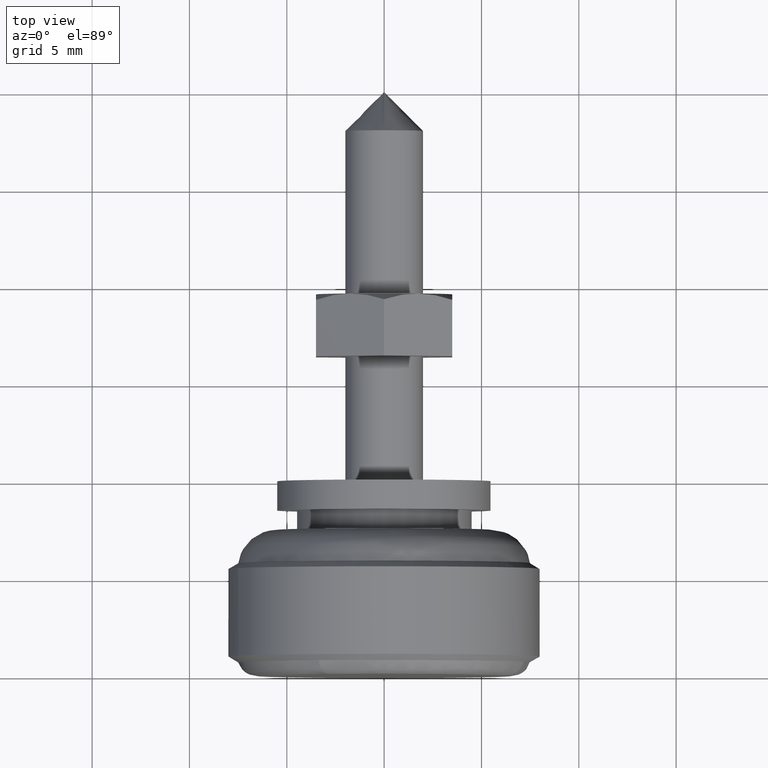
[diagram: clean part render]
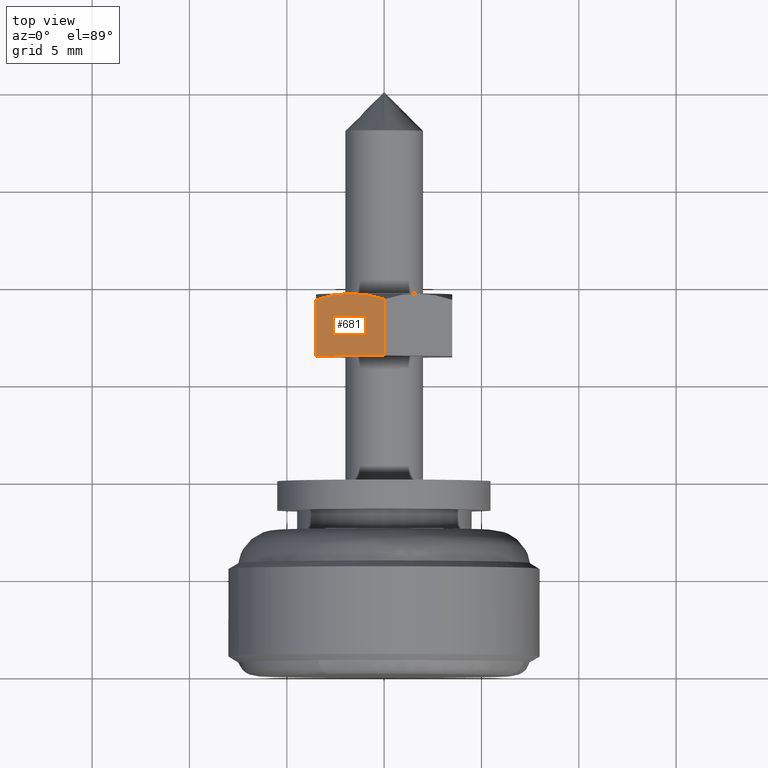
[diagram: same view with one face highlighted and labeled with its STEP entity id]
A machine part, top view. The second image highlights one B-rep face of the part: STEP entity #681.
In plain terms, the highlighted face is a freeform B-spline surface patch.
Its self-contained STEP definition (entity closure, byte-faithful):
#402=CARTESIAN_POINT('',(9.287777574894541,3.500000000000165,2.020699999999960));
#403=VERTEX_POINT('',#402);
#417=CARTESIAN_POINT('',(9.599800000000000,1.763267630760730,3.023390028149115));
#418=VERTEX_POINT('',#417);
#419=CARTESIAN_POINT('',(9.287777574894541,3.500000000000165,2.020699999999960));
#420=CARTESIAN_POINT('',(9.311531720283725,3.428606820163918,2.061918342427126));
#421=CARTESIAN_POINT('',(9.334304428699731,3.356890165724180,2.103323440606092));
#422=CARTESIAN_POINT('',(9.377641077201481,3.212728862608312,2.186553939236441));
#423=CARTESIAN_POINT('',(9.398219891941841,3.140215435351167,2.228419048510300));
#424=CARTESIAN_POINT('',(9.455936749683646,2.922666004987612,2.354019658206192));
#425=CARTESIAN_POINT('',(9.489155578477980,2.777294217634538,2.437949021264578));
#426=CARTESIAN_POINT('',(9.569721827733401,2.343758551217000,2.688247741587405));
#427=CARTESIAN_POINT('',(9.598937444526282,2.054426469392420,2.855291552371095));
#428=CARTESIAN_POINT('',(9.599800000000000,1.763267630760730,3.023390028149115));
#429=B_SPLINE_CURVE_WITH_KNOTS('',3,(#419,#420,#421,#422,#423,#424,#425,#426,#427,#428),.UNSPECIFIED.,.F.,.U.,(4,2,2,2,4),(0.0,0.062500000000000,0.124999999999999,0.249999999999999,0.496771747271935),.UNSPECIFIED.);
#430=EDGE_CURVE('',#403,#418,#429,.T.);
#462=CARTESIAN_POINT('',(9.287800000000001,-5.257714E-016,4.041399999999999));
#463=VERTEX_POINT('',#462);
#479=CARTESIAN_POINT('',(9.599800000000000,1.736664969520875,3.038748884596935));
#480=VERTEX_POINT('',#479);
#494=CARTESIAN_POINT('',(9.599800000000000,1.736664969520875,3.038748884596935));
#495=CARTESIAN_POINT('',(9.599381548510628,1.594183902221551,3.121009311080283));
#496=CARTESIAN_POINT('',(9.592248547774934,1.451270219046963,3.203519505249107));
#497=CARTESIAN_POINT('',(9.571357098975414,1.233714089974394,3.329123982396800));
#498=CARTESIAN_POINT('',(9.562433368831906,1.159212092699103,3.372137178366566));
#499=CARTESIAN_POINT('',(9.541291348238362,1.010929575202129,3.457747030682601));
#500=CARTESIAN_POINT('',(9.529092441953495,0.937205686828811,3.500310991035733));
#501=CARTESIAN_POINT('',(9.460622697065402,0.570502787954303,3.712024290394505));
#502=CARTESIAN_POINT('',(9.382039188326685,0.283244442393351,3.877870844358790));
#503=CARTESIAN_POINT('',(9.287800000000020,-6.075018E-015,4.041400000000003));
#504=B_SPLINE_CURVE_WITH_KNOTS('',3,(#494,#495,#496,#497,#498,#499,#500,#501,#502,#503),.UNSPECIFIED.,.F.,.U.,(4,2,2,2,4),(0.504286012712478,0.625000000000000,0.687500000000000,0.750000000000000,1.0),.UNSPECIFIED.);
#505=EDGE_CURVE('',#480,#463,#504,.T.);
#517=CARTESIAN_POINT('',(6.400000000000000,0.0,4.041399999999999));
#518=VERTEX_POINT('',#517);
#524=CARTESIAN_POINT('',(6.400000000000000,3.500000000000085,2.020700000000000));
#525=VERTEX_POINT('',#524);
#526=CARTESIAN_POINT('',(6.400000000000000,0.0,4.041399999999999));
#527=CARTESIAN_POINT('',(6.400000000000000,3.500000000000085,2.020700000000000));
#528=QUASI_UNIFORM_CURVE('',1,(#526,#527),.UNSPECIFIED.,.F.,.U.);
#529=EDGE_CURVE('',#518,#525,#528,.T.);
#579=CARTESIAN_POINT('',(9.599800000000000,1.736664969520875,3.038748884596935));
#580=CARTESIAN_POINT('',(9.599800000000000,1.763267630760730,3.023390028149115));
#581=QUASI_UNIFORM_CURVE('',1,(#579,#580),.UNSPECIFIED.,.F.,.U.);
#582=EDGE_CURVE('',#480,#418,#581,.T.);
#655=CARTESIAN_POINT('',(9.287777574894541,3.500000000000165,2.020699999999960));
#656=CARTESIAN_POINT('',(6.400000000000000,3.500000000000085,2.020700000000000));
#657=QUASI_UNIFORM_CURVE('',1,(#655,#656),.UNSPECIFIED.,.F.,.U.);
#658=EDGE_CURVE('',#403,#525,#657,.T.);
#664=CARTESIAN_POINT('',(6.240170086314131,3.674825026071987,1.919766019947576));
#665=CARTESIAN_POINT('',(6.240170086314131,-0.174825088656702,4.142334016185311));
#666=CARTESIAN_POINT('',(9.759630085336518,3.674825026071987,1.919766019947576));
#667=CARTESIAN_POINT('',(9.759630085336518,-0.174825088656702,4.142334016185311));
#668=B_SPLINE_SURFACE_WITH_KNOTS('',1,1,((#664,#666),(#665,#667)),.UNSPECIFIED.,.F.,.F.,.U.,(2,2),(2,2),(0.0,4.445178793224276),(0.0,3.519459999022387),.UNSPECIFIED.);
#669=ORIENTED_EDGE('',*,*,#430,.F.);
#670=ORIENTED_EDGE('',*,*,#658,.T.);
#671=ORIENTED_EDGE('',*,*,#529,.F.);
#672=CARTESIAN_POINT('',(9.287800000000001,-5.257714E-016,4.041399999999999));
#673=CARTESIAN_POINT('',(6.400000000000000,0.0,4.041399999999999));
#674=QUASI_UNIFORM_CURVE('',1,(#672,#673),.UNSPECIFIED.,.F.,.U.);
#675=EDGE_CURVE('',#463,#518,#674,.T.);
#676=ORIENTED_EDGE('',*,*,#675,.F.);
#677=ORIENTED_EDGE('',*,*,#505,.F.);
#678=ORIENTED_EDGE('',*,*,#582,.T.);
#679=EDGE_LOOP('',(#669,#670,#671,#676,#677,#678));
#680=FACE_OUTER_BOUND('',#679,.T.);
#681=ADVANCED_FACE('',(#680),#668,.T.);